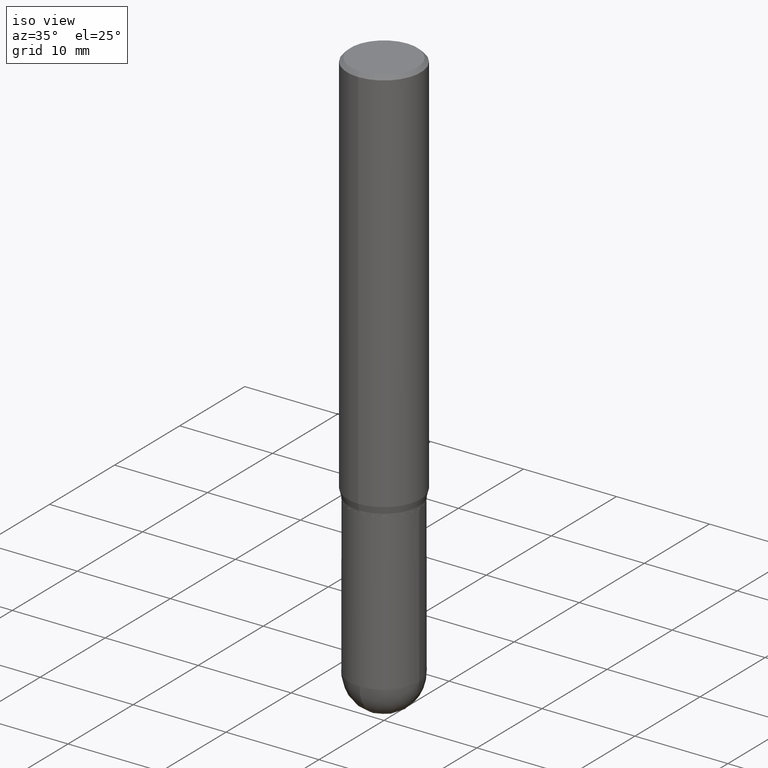
[diagram: clean part render]
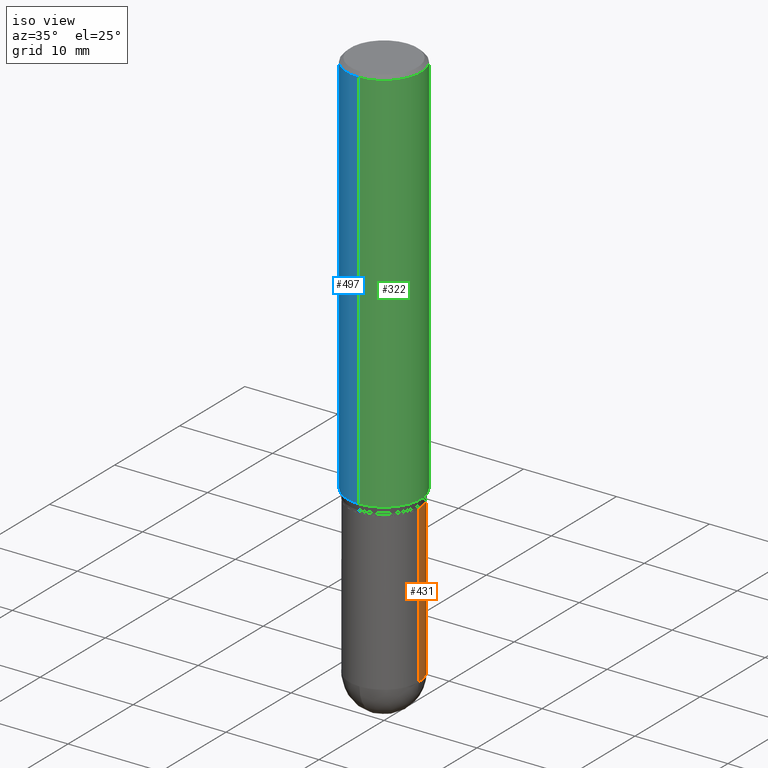
[diagram: same view with three faces highlighted in distinct colors, each labeled with its STEP entity id]
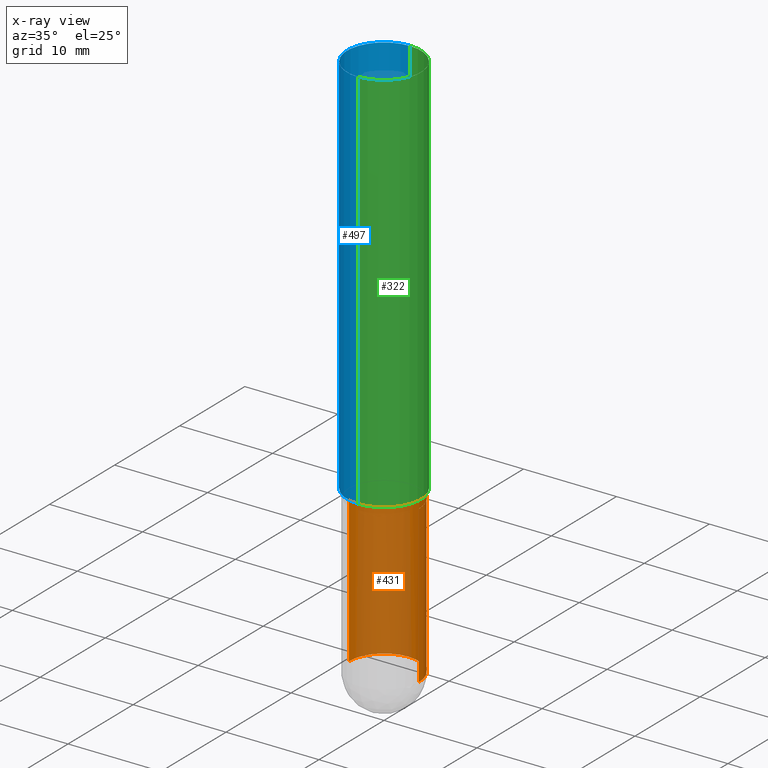
[diagram: x-ray of the same camera — body ghosted, the three highlighted faces saturated]
A machine part, iso view with three faces highlighted in distinct colors.
The next image is the same camera in x-ray (body ghosted, the three faces saturated) — at least one of them is partly hidden behind the body in this view.
Their STEP definitions:

[orange] entity #431 — the highlighted cylindrical surface (partial cylindrical patch) has radius 3.7706 mm, axis along (-0, 0, 1).
#3 = CYLINDRICAL_SURFACE ( 'NONE', #304, 0.1484499999999999986 ) ;
#24 = ORIENTED_EDGE ( 'NONE', *, *, #396, .T. ) ;
#34 = ORIENTED_EDGE ( 'NONE', *, *, #92, .F. ) ;
#62 = DIRECTION ( 'NONE',  ( -2.445468806185136597E-29, 3.491481338843145583E-15, 1.000000000000000000 ) ) ;
#71 = DIRECTION ( 'NONE',  ( -2.445468806185136877E-29, 3.491481338843145188E-15, 1.000000000000000000 ) ) ;
#81 = CARTESIAN_POINT ( 'NONE',  ( -0.1484499999999999986, -5.997206029926045282E-15, -1.688000000000000167 ) ) ;
#92 = EDGE_CURVE ( 'NONE', #374, #439, #114, .T. ) ;
#93 = DIRECTION ( 'NONE',  ( -2.445468806185136877E-29, 3.491481338843145188E-15, 1.000000000000000000 ) ) ;
#95 = DIRECTION ( 'NONE',  ( 1.000000000000000000, -6.982962677686261189E-15, 0.000000000000000000 ) ) ;
#114 = CIRCLE ( 'NONE', #316, 0.1484499999999999986 ) ;
#122 = DIRECTION ( 'NONE',  ( -2.445468806185136597E-29, 3.491481338843145583E-15, 1.000000000000000000 ) ) ;
#124 = AXIS2_PLACEMENT_3D ( 'NONE', #200, #305, #344 ) ;
#137 = CARTESIAN_POINT ( 'NONE',  ( 5.750642171184658911E-29, -8.210392942356599628E-15, -2.351550000000000029 ) ) ;
#141 = VECTOR ( 'NONE', #71, 39.37007874015748143 ) ;
#157 = VECTOR ( 'NONE', #93, 39.37007874015748143 ) ;
#159 = EDGE_CURVE ( 'NONE', #351, #439, #212, .T. ) ;
#180 = CIRCLE ( 'NONE', #346, 0.1484499999999999986 ) ;
#188 = LINE ( 'NONE', #190, #141 ) ;
#190 = CARTESIAN_POINT ( 'NONE',  ( 0.1484499999999999986, -1.036620809502526093E-15, 7.238684423669066410E-30 ) ) ;
#200 = CARTESIAN_POINT ( 'NONE',  ( 5.750642171184658911E-29, -8.210392942356599628E-15, -2.351550000000000029 ) ) ;
#212 = LINE ( 'NONE', #362, #157 ) ;
#221 = CARTESIAN_POINT ( 'NONE',  ( 0.1484499999999999986, -6.930241309469756235E-15, -1.688000000000000167 ) ) ;
#237 = EDGE_CURVE ( 'NONE', #490, #343, #180, .T. ) ;
#275 = CARTESIAN_POINT ( 'NONE',  ( 0.000000000000000000, 0.000000000000000000, 0.000000000000000000 ) ) ;
#276 = EDGE_CURVE ( 'NONE', #490, #374, #188, .T. ) ;
#295 = CARTESIAN_POINT ( 'NONE',  ( -0.1484500000000000264, -5.997206029926045282E-15, -2.351550000000000029 ) ) ;
#304 = AXIS2_PLACEMENT_3D ( 'NONE', #275, #122, #433 ) ;
#305 = DIRECTION ( 'NONE',  ( -2.445468806185136597E-29, 3.491481338843145583E-15, 1.000000000000000000 ) ) ;
#306 = FACE_OUTER_BOUND ( 'NONE', #428, .T. ) ;
#316 = AXIS2_PLACEMENT_3D ( 'NONE', #406, #62, #397 ) ;
#342 = ORIENTED_EDGE ( 'NONE', *, *, #237, .T. ) ;
#343 = VERTEX_POINT ( 'NONE', #496 ) ;
#344 = DIRECTION ( 'NONE',  ( 1.000000000000000000, -6.982962677686261189E-15, 0.000000000000000000 ) ) ;
#346 = AXIS2_PLACEMENT_3D ( 'NONE', #137, #448, #95 ) ;
#351 = VERTEX_POINT ( 'NONE', #295 ) ;
#362 = CARTESIAN_POINT ( 'NONE',  ( -0.1484499999999999986, 1.054800691235868716E-15, -7.302159141483407353E-30 ) ) ;
#374 = VERTEX_POINT ( 'NONE', #221 ) ;
#396 = EDGE_CURVE ( 'NONE', #343, #351, #499, .T. ) ;
#397 = DIRECTION ( 'NONE',  ( 1.000000000000000000, -6.982962677686268288E-15, 0.000000000000000000 ) ) ;
#404 = ORIENTED_EDGE ( 'NONE', *, *, #159, .T. ) ;
#406 = CARTESIAN_POINT ( 'NONE',  ( 4.127951344840510809E-29, -5.893620499967230340E-15, -1.688000000000000167 ) ) ;
#415 = ORIENTED_EDGE ( 'NONE', *, *, #276, .F. ) ;
#428 = EDGE_LOOP ( 'NONE', ( #24, #404, #34, #415, #342 ) ) ;
#431 = ADVANCED_FACE ( 'NONE', ( #306 ), #3, .T. ) ;
#433 = DIRECTION ( 'NONE',  ( 1.000000000000000000, -6.982962677686265133E-15, 4.876176775795935793E-29 ) ) ;
#439 = VERTEX_POINT ( 'NONE', #81 ) ;
#448 = DIRECTION ( 'NONE',  ( -2.445468806185136597E-29, 3.491481338843145583E-15, 1.000000000000000000 ) ) ;
#490 = VERTEX_POINT ( 'NONE', #505 ) ;
#496 = CARTESIAN_POINT ( 'NONE',  ( 1.036620809502583482E-15, 0.1484499999999917552, -2.351550000000000917 ) ) ;
#499 = CIRCLE ( 'NONE', #124, 0.1484499999999999986 ) ;
#505 = CARTESIAN_POINT ( 'NONE',  ( 0.1484500000000000264, -8.088627530664441274E-15, -2.351550000000000029 ) ) ;

[blue] entity #497 — the highlighted cylindrical surface (partial cylindrical patch) has radius 3.9688 mm, axis along (-0, 0, 1).
#41 = VERTEX_POINT ( 'NONE', #441 ) ;
#65 = DIRECTION ( 'NONE',  ( -2.445490069243608012E-29, 3.491450888933196382E-15, 1.000000000000000000 ) ) ;
#66 = AXIS2_PLACEMENT_3D ( 'NONE', #313, #479, #193 ) ;
#69 = DIRECTION ( 'NONE',  ( -2.445490069243607732E-29, 3.491450888933196382E-15, 1.000000000000000000 ) ) ;
#90 = ORIENTED_EDGE ( 'NONE', *, *, #307, .F. ) ;
#96 = VERTEX_POINT ( 'NONE', #144 ) ;
#108 = CARTESIAN_POINT ( 'NONE',  ( 4.032344129325759959E-29, -5.757018469174787690E-15, -1.648890003700962614 ) ) ;
#112 = CARTESIAN_POINT ( 'NONE',  ( 1.110223024625156343E-15, 0.1562500000000000000, -5.455392013958119963E-16 ) ) ;
#144 = CARTESIAN_POINT ( 'NONE',  ( 1.110223024625196772E-15, 0.1562499999999942268, -1.648890003700963280 ) ) ;
#150 = AXIS2_PLACEMENT_3D ( 'NONE', #108, #262, #413 ) ;
#193 = DIRECTION ( 'NONE',  ( -6.982962677686265133E-15, -1.000000000000000000, 3.491450888933196776E-15 ) ) ;
#196 = FACE_OUTER_BOUND ( 'NONE', #232, .T. ) ;
#229 = LINE ( 'NONE', #338, #334 ) ;
#232 = EDGE_LOOP ( 'NONE', ( #252, #287, #312, #90 ) ) ;
#238 = CYLINDRICAL_SURFACE ( 'NONE', #66, 0.1562500000000000000 ) ;
#252 = ORIENTED_EDGE ( 'NONE', *, *, #314, .F. ) ;
#262 = DIRECTION ( 'NONE',  ( -2.445490069243608012E-29, 3.491450888933196382E-15, 1.000000000000000000 ) ) ;
#264 = VERTEX_POINT ( 'NONE', #293 ) ;
#287 = ORIENTED_EDGE ( 'NONE', *, *, #364, .T. ) ;
#293 = CARTESIAN_POINT ( 'NONE',  ( 1.110223024625197167E-15, 0.1562499999999999445, -0.01500000000000057711 ) ) ;
#298 = CIRCLE ( 'NONE', #150, 0.1562500000000000000 ) ;
#307 = EDGE_CURVE ( 'NONE', #264, #41, #421, .T. ) ;
#312 = ORIENTED_EDGE ( 'NONE', *, *, #341, .T. ) ;
#313 = CARTESIAN_POINT ( 'NONE',  ( 0.000000000000000000, 0.000000000000000000, 0.000000000000000000 ) ) ;
#314 = EDGE_CURVE ( 'NONE', #96, #264, #379, .T. ) ;
#331 = DIRECTION ( 'NONE',  ( -2.445490069243607732E-29, 3.491450888933196382E-15, 1.000000000000000000 ) ) ;
#334 = VECTOR ( 'NONE', #331, 39.37007874015748143 ) ;
#337 = CARTESIAN_POINT ( 'NONE',  ( 3.668235103865419358E-31, -5.237176333399805124E-17, -0.01500000000000003067 ) ) ;
#338 = CARTESIAN_POINT ( 'NONE',  ( -1.091087918388478976E-15, -0.1562500000000000000, 5.455392013958119963E-16 ) ) ;
#341 = EDGE_CURVE ( 'NONE', #352, #41, #229, .T. ) ;
#352 = VERTEX_POINT ( 'NONE', #458 ) ;
#364 = EDGE_CURVE ( 'NONE', #96, #352, #298, .T. ) ;
#379 = LINE ( 'NONE', #112, #506 ) ;
#413 = DIRECTION ( 'NONE',  ( -6.982962677686265133E-15, -1.000000000000000000, 3.496765431890256920E-15 ) ) ;
#421 = CIRCLE ( 'NONE', #491, 0.1562500000000000000 ) ;
#441 = CARTESIAN_POINT ( 'NONE',  ( -1.091087918388478779E-15, -0.1562500000000000833, -0.01499999999999948423 ) ) ;
#458 = CARTESIAN_POINT ( 'NONE',  ( -1.091087918388438744E-15, -0.1562500000000057732, -1.648890003700962170 ) ) ;
#479 = DIRECTION ( 'NONE',  ( -2.445490069243608012E-29, 3.491450888933196382E-15, 1.000000000000000000 ) ) ;
#491 = AXIS2_PLACEMENT_3D ( 'NONE', #337, #65, #502 ) ;
#497 = ADVANCED_FACE ( 'NONE', ( #196 ), #238, .T. ) ;
#502 = DIRECTION ( 'NONE',  ( -6.982962677686265133E-15, -1.000000000000000000, 3.496765431890256920E-15 ) ) ;
#506 = VECTOR ( 'NONE', #69, 39.37007874015748143 ) ;

[green] entity #322 — the highlighted cylindrical surface (partial cylindrical patch) has radius 3.9688 mm, axis along (-0, 0, 1).
#15 = CARTESIAN_POINT ( 'NONE',  ( 4.032344129325759959E-29, -5.757018469174787690E-15, -1.648890003700962614 ) ) ;
#21 = CYLINDRICAL_SURFACE ( 'NONE', #410, 0.1562500000000000000 ) ;
#41 = VERTEX_POINT ( 'NONE', #441 ) ;
#69 = DIRECTION ( 'NONE',  ( -2.445490069243607732E-29, 3.491450888933196382E-15, 1.000000000000000000 ) ) ;
#79 = AXIS2_PLACEMENT_3D ( 'NONE', #258, #302, #408 ) ;
#96 = VERTEX_POINT ( 'NONE', #144 ) ;
#112 = CARTESIAN_POINT ( 'NONE',  ( 1.110223024625156343E-15, 0.1562500000000000000, -5.455392013958119963E-16 ) ) ;
#138 = ORIENTED_EDGE ( 'NONE', *, *, #245, .F. ) ;
#144 = CARTESIAN_POINT ( 'NONE',  ( 1.110223024625196772E-15, 0.1562499999999942268, -1.648890003700963280 ) ) ;
#151 = DIRECTION ( 'NONE',  ( -6.982962677686265133E-15, -1.000000000000000000, 3.491450888933196776E-15 ) ) ;
#158 = EDGE_CURVE ( 'NONE', #352, #96, #355, .T. ) ;
#178 = DIRECTION ( 'NONE',  ( -6.982962677686265133E-15, -1.000000000000000000, 3.496765431890256920E-15 ) ) ;
#183 = DIRECTION ( 'NONE',  ( -2.445490069243608012E-29, 3.491450888933196382E-15, 1.000000000000000000 ) ) ;
#219 = CIRCLE ( 'NONE', #79, 0.1562500000000000000 ) ;
#229 = LINE ( 'NONE', #338, #334 ) ;
#245 = EDGE_CURVE ( 'NONE', #41, #264, #219, .T. ) ;
#258 = CARTESIAN_POINT ( 'NONE',  ( 3.668235103865419358E-31, -5.237176333399805124E-17, -0.01500000000000003067 ) ) ;
#264 = VERTEX_POINT ( 'NONE', #293 ) ;
#265 = FACE_OUTER_BOUND ( 'NONE', #423, .T. ) ;
#271 = ORIENTED_EDGE ( 'NONE', *, *, #314, .T. ) ;
#283 = DIRECTION ( 'NONE',  ( -2.445490069243608012E-29, 3.491450888933196382E-15, 1.000000000000000000 ) ) ;
#293 = CARTESIAN_POINT ( 'NONE',  ( 1.110223024625197167E-15, 0.1562499999999999445, -0.01500000000000057711 ) ) ;
#302 = DIRECTION ( 'NONE',  ( -2.445490069243608012E-29, 3.491450888933196382E-15, 1.000000000000000000 ) ) ;
#314 = EDGE_CURVE ( 'NONE', #96, #264, #379, .T. ) ;
#322 = ADVANCED_FACE ( 'NONE', ( #265 ), #21, .T. ) ;
#330 = ORIENTED_EDGE ( 'NONE', *, *, #158, .T. ) ;
#331 = DIRECTION ( 'NONE',  ( -2.445490069243607732E-29, 3.491450888933196382E-15, 1.000000000000000000 ) ) ;
#334 = VECTOR ( 'NONE', #331, 39.37007874015748143 ) ;
#338 = CARTESIAN_POINT ( 'NONE',  ( -1.091087918388478976E-15, -0.1562500000000000000, 5.455392013958119963E-16 ) ) ;
#341 = EDGE_CURVE ( 'NONE', #352, #41, #229, .T. ) ;
#352 = VERTEX_POINT ( 'NONE', #458 ) ;
#355 = CIRCLE ( 'NONE', #475, 0.1562500000000000000 ) ;
#360 = ORIENTED_EDGE ( 'NONE', *, *, #341, .F. ) ;
#373 = CARTESIAN_POINT ( 'NONE',  ( 0.000000000000000000, 0.000000000000000000, 0.000000000000000000 ) ) ;
#379 = LINE ( 'NONE', #112, #506 ) ;
#408 = DIRECTION ( 'NONE',  ( -6.982962677686265133E-15, -1.000000000000000000, 3.496765431890256920E-15 ) ) ;
#410 = AXIS2_PLACEMENT_3D ( 'NONE', #373, #183, #151 ) ;
#423 = EDGE_LOOP ( 'NONE', ( #330, #271, #138, #360 ) ) ;
#441 = CARTESIAN_POINT ( 'NONE',  ( -1.091087918388478779E-15, -0.1562500000000000833, -0.01499999999999948423 ) ) ;
#458 = CARTESIAN_POINT ( 'NONE',  ( -1.091087918388438744E-15, -0.1562500000000057732, -1.648890003700962170 ) ) ;
#475 = AXIS2_PLACEMENT_3D ( 'NONE', #15, #283, #178 ) ;
#506 = VECTOR ( 'NONE', #69, 39.37007874015748143 ) ;